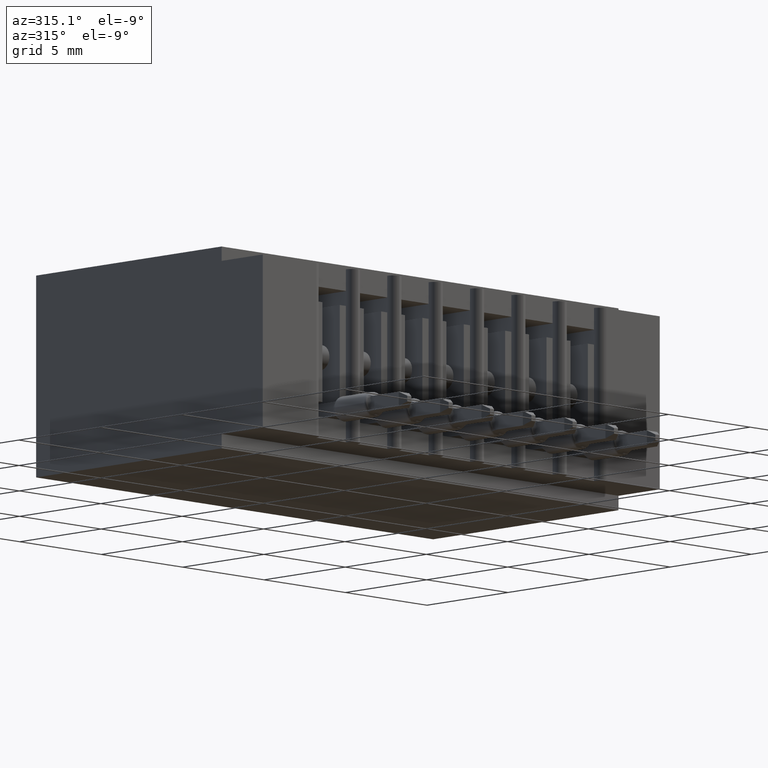
[diagram: clean part render]
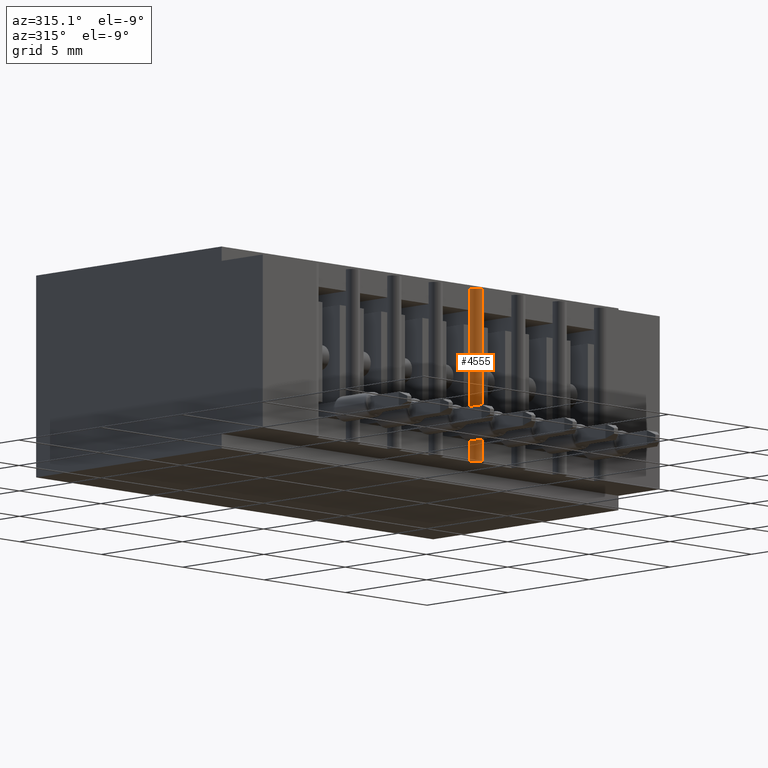
[diagram: same view with one face highlighted and labeled with its STEP entity id]
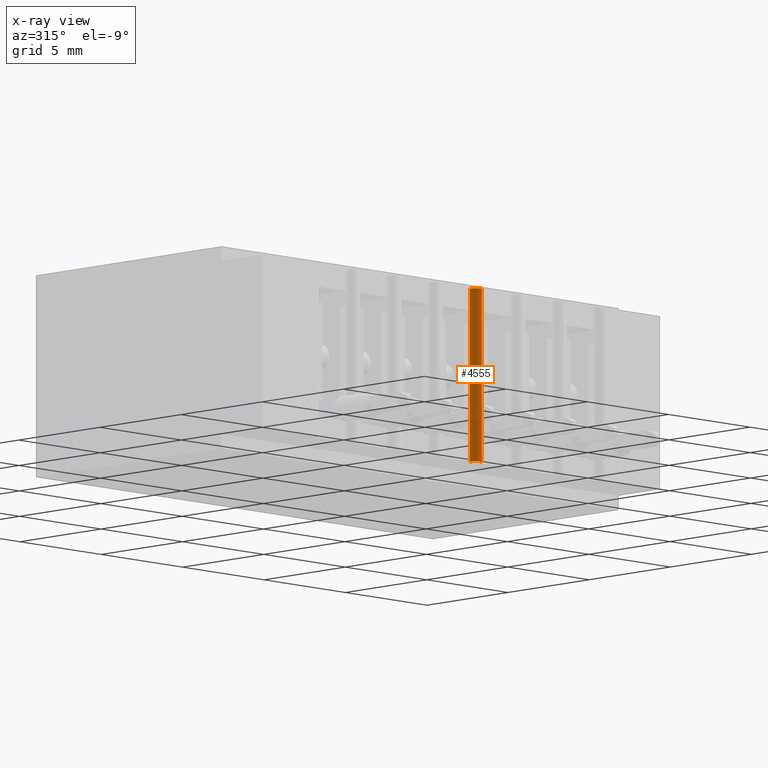
[diagram: x-ray of the same camera — body ghosted, the highlighted face saturated]
A machine part, auxiliary view. The second image highlights one B-rep face of the part: STEP entity #4555.
The next image is the same camera in x-ray: the body ghosted, the highlighted face saturated — about 10% of this face is hidden behind the body in this view.
In plain terms, the highlighted cylindrical surface (edge-blend (fillet) strip) has radius 0.381 mm, axis along (0, 0, 1).
Its self-contained STEP definition (entity closure, byte-faithful):
#58 = ORIENTED_EDGE ( 'NONE', *, *, #9945, .F. ) ;
#269 = LINE ( 'NONE', #10948, #6996 ) ;
#465 = CARTESIAN_POINT ( 'NONE',  ( 0.5159999999999996800, 0.01499999999999993200, -0.3499999999999999800 ) ) ;
#544 = EDGE_CURVE ( 'NONE', #4233, #3655, #13425, .T. ) ;
#1126 = CARTESIAN_POINT ( 'NONE',  ( 0.5159999999999996800, 0.01499999999999998900, -0.06250000000000002800 ) ) ;
#1139 = VERTEX_POINT ( 'NONE', #2795 ) ;
#1244 = AXIS2_PLACEMENT_3D ( 'NONE', #5234, #6502, #15297 ) ;
#2022 = DIRECTION ( 'NONE',  ( 0.0000000000000000000, -0.0000000000000000000, -1.000000000000000000 ) ) ;
#2100 = CYLINDRICAL_SURFACE ( 'NONE', #1244, 0.01499999999999997700 ) ;
#2102 = LINE ( 'NONE', #8521, #13561 ) ;
#2131 = DIRECTION ( 'NONE',  ( -0.0000000000000000000, -0.0000000000000000000, 1.000000000000000000 ) ) ;
#2205 = VECTOR ( 'NONE', #4635, 39.37007874015748100 ) ;
#2579 = LINE ( 'NONE', #8392, #2205 ) ;
#2795 = CARTESIAN_POINT ( 'NONE',  ( 0.5159999999999996800, 0.01499999999999993200, -0.2875000000000000900 ) ) ;
#3036 = DIRECTION ( 'NONE',  ( -0.0000000000000000000, -0.0000000000000000000, -1.000000000000000000 ) ) ;
#3447 = VERTEX_POINT ( 'NONE', #16016 ) ;
#3655 = VERTEX_POINT ( 'NONE', #15241 ) ;
#3685 = ORIENTED_EDGE ( 'NONE', *, *, #4231, .T. ) ;
#3792 = EDGE_CURVE ( 'NONE', #6123, #6583, #8576, .T. ) ;
#4130 = VERTEX_POINT ( 'NONE', #1126 ) ;
#4227 = DIRECTION ( 'NONE',  ( -0.0000000000000000000, -0.0000000000000000000, 1.000000000000000000 ) ) ;
#4231 = EDGE_CURVE ( 'NONE', #4233, #3447, #7432, .T. ) ;
#4233 = VERTEX_POINT ( 'NONE', #14603 ) ;
#4555 = ADVANCED_FACE ( 'NONE', ( #5872 ), #2100, .T. ) ;
#4635 = DIRECTION ( 'NONE',  ( -0.0000000000000000000, -0.0000000000000000000, 1.000000000000000000 ) ) ;
#4644 = EDGE_LOOP ( 'NONE', ( #13343, #3685, #10375, #5190, #16335, #14227, #58, #12563 ) ) ;
#5025 = CARTESIAN_POINT ( 'NONE',  ( 0.5299999999999992500, 3.337045290419168300E-005, -0.1874999999999999700 ) ) ;
#5190 = ORIENTED_EDGE ( 'NONE', *, *, #11427, .F. ) ;
#5234 = CARTESIAN_POINT ( 'NONE',  ( 0.5309999999999996900, 0.01499999999999991600, -0.3499999999999999800 ) ) ;
#5872 = FACE_OUTER_BOUND ( 'NONE', #4644, .T. ) ;
#6123 = VERTEX_POINT ( 'NONE', #14236 ) ;
#6502 = DIRECTION ( 'NONE',  ( -0.0000000000000000000, -0.0000000000000000000, 1.000000000000000000 ) ) ;
#6583 = VERTEX_POINT ( 'NONE', #14228 ) ;
#6891 = DIRECTION ( 'NONE',  ( -0.0000000000000000000, -0.0000000000000000000, 1.000000000000000000 ) ) ;
#6972 = EDGE_CURVE ( 'NONE', #4130, #3447, #2579, .T. ) ;
#6996 = VECTOR ( 'NONE', #2131, 39.37007874015748100 ) ;
#7432 = CIRCLE ( 'NONE', #12026, 0.01499999999999997700 ) ;
#8081 = EDGE_CURVE ( 'NONE', #3655, #15704, #15895, .T. ) ;
#8179 = VECTOR ( 'NONE', #4227, 39.37007874015748100 ) ;
#8392 = CARTESIAN_POINT ( 'NONE',  ( 0.5159999999999996800, 0.01499999999999993200, -0.3499999999999999800 ) ) ;
#8521 = CARTESIAN_POINT ( 'NONE',  ( 0.5159999999999996800, 0.01499999999999993200, -0.3499999999999999800 ) ) ;
#8576 = LINE ( 'NONE', #465, #8179 ) ;
#9345 = EDGE_CURVE ( 'NONE', #1139, #6123, #269, .T. ) ;
#9610 = CARTESIAN_POINT ( 'NONE',  ( 0.5309999999999996900, 0.01499999999999991600, -0.02500000000000000500 ) ) ;
#9800 = DIRECTION ( 'NONE',  ( -0.0000000000000000000, -0.0000000000000000000, 1.000000000000000000 ) ) ;
#9871 = AXIS2_PLACEMENT_3D ( 'NONE', #10611, #3036, #11871 ) ;
#9945 = EDGE_CURVE ( 'NONE', #15704, #1139, #10900, .T. ) ;
#10138 = DIRECTION ( 'NONE',  ( 0.0000000000000000000, 0.0000000000000000000, -1.000000000000000000 ) ) ;
#10375 = ORIENTED_EDGE ( 'NONE', *, *, #6972, .F. ) ;
#10611 = CARTESIAN_POINT ( 'NONE',  ( 0.5309999999999996900, 0.01499999999999991600, -0.3249999999999999600 ) ) ;
#10845 = DIRECTION ( 'NONE',  ( 1.000000000000000000, 0.0000000000000000000, 0.0000000000000000000 ) ) ;
#10900 = LINE ( 'NONE', #13197, #13860 ) ;
#10948 = CARTESIAN_POINT ( 'NONE',  ( 0.5159999999999996800, 0.01499999999999993200, -0.3499999999999999800 ) ) ;
#11427 = EDGE_CURVE ( 'NONE', #6583, #4130, #2102, .T. ) ;
#11871 = DIRECTION ( 'NONE',  ( 1.000000000000000000, 0.0000000000000000000, 0.0000000000000000000 ) ) ;
#12026 = AXIS2_PLACEMENT_3D ( 'NONE', #9610, #2022, #10845 ) ;
#12563 = ORIENTED_EDGE ( 'NONE', *, *, #8081, .F. ) ;
#13197 = CARTESIAN_POINT ( 'NONE',  ( 0.5159999999999996800, 0.01499999999999993200, -0.3499999999999999800 ) ) ;
#13343 = ORIENTED_EDGE ( 'NONE', *, *, #544, .F. ) ;
#13425 = LINE ( 'NONE', #5025, #15960 ) ;
#13561 = VECTOR ( 'NONE', #9800, 39.37007874015748100 ) ;
#13860 = VECTOR ( 'NONE', #6891, 39.37007874015748100 ) ;
#14227 = ORIENTED_EDGE ( 'NONE', *, *, #9345, .F. ) ;
#14228 = CARTESIAN_POINT ( 'NONE',  ( 0.5159999999999996800, 0.01499999999999993200, -0.08849999999999995400 ) ) ;
#14236 = CARTESIAN_POINT ( 'NONE',  ( 0.5159999999999996800, 0.01500000000000002700, -0.2615000000000001800 ) ) ;
#14603 = CARTESIAN_POINT ( 'NONE',  ( 0.5299999999999992500, 3.337045290420235600E-005, -0.02500000000000000500 ) ) ;
#15046 = CARTESIAN_POINT ( 'NONE',  ( 0.5159999999999996800, 0.01499999999999993200, -0.3249999999999999600 ) ) ;
#15241 = CARTESIAN_POINT ( 'NONE',  ( 0.5299999999999992500, 3.337045290419168300E-005, -0.3249999999999999600 ) ) ;
#15297 = DIRECTION ( 'NONE',  ( 1.000000000000000000, 0.0000000000000000000, 0.0000000000000000000 ) ) ;
#15704 = VERTEX_POINT ( 'NONE', #15046 ) ;
#15895 = CIRCLE ( 'NONE', #9871, 0.01499999999999997700 ) ;
#15960 = VECTOR ( 'NONE', #10138, 39.37007874015748100 ) ;
#16016 = CARTESIAN_POINT ( 'NONE',  ( 0.5159999999999996800, 0.01499999999999993200, -0.02500000000000000500 ) ) ;
#16335 = ORIENTED_EDGE ( 'NONE', *, *, #3792, .F. ) ;